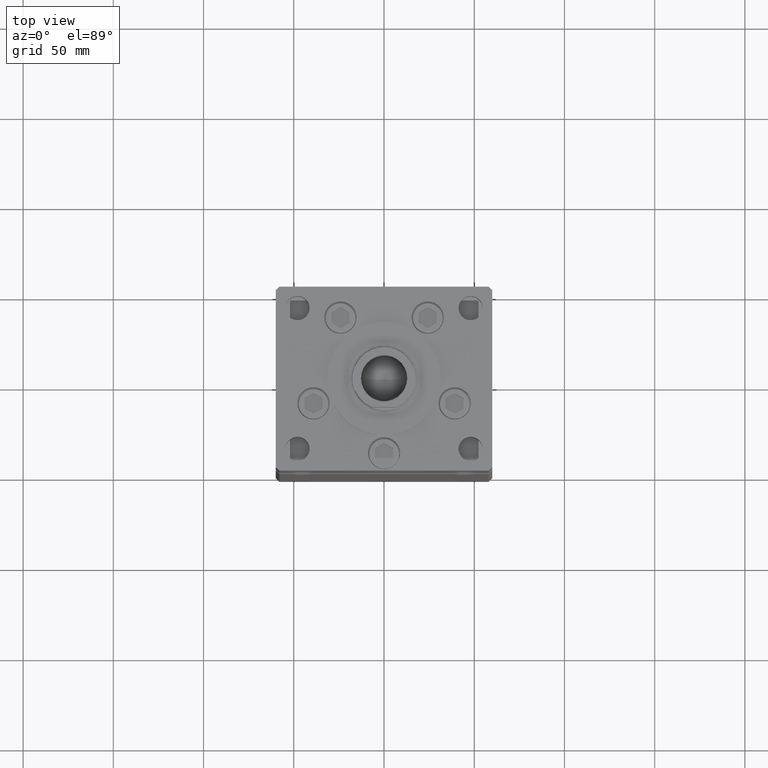
[diagram: clean part render]
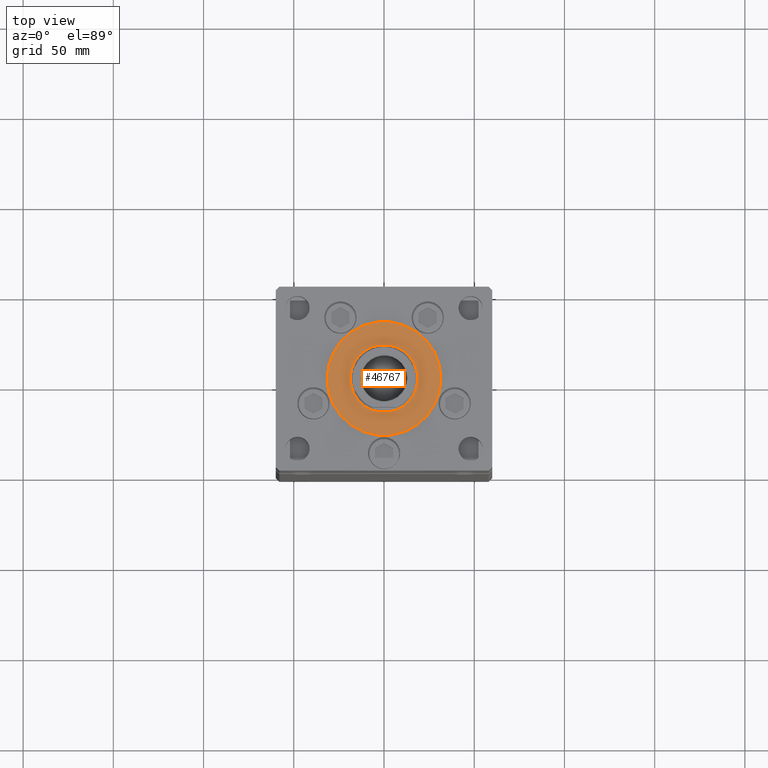
[diagram: same view with one face highlighted and labeled with its STEP entity id]
A machine part, top view. The second image highlights one B-rep face of the part: STEP entity #46767.
In plain terms, the highlighted planar face has unit normal (0, 0, 1).
Its self-contained STEP definition (entity closure, byte-faithful):
#173 = CARTESIAN_POINT ( 'NONE',  ( 0.000000000000000000, -6.938893903907228378E-15, 2.000000000000000000 ) ) ;
#968 = EDGE_CURVE ( 'NONE', #7262, #20343, #6055, .T. ) ;
#2905 = CARTESIAN_POINT ( 'NONE',  ( 0.000000000000000000, -6.938893903907228378E-15, 2.000000000000000000 ) ) ;
#3665 = DIRECTION ( 'NONE',  ( 0.000000000000000000, 0.000000000000000000, 1.000000000000000000 ) ) ;
#6055 = CIRCLE ( 'NONE', #41148, 18.75000000000000355 ) ;
#6567 = EDGE_CURVE ( 'NONE', #14253, #32097, #37861, .T. ) ;
#7262 = VERTEX_POINT ( 'NONE', #30052 ) ;
#8321 = ORIENTED_EDGE ( 'NONE', *, *, #968, .F. ) ;
#9760 = CIRCLE ( 'NONE', #40574, 31.50000000000000000 ) ;
#10675 = FACE_OUTER_BOUND ( 'NONE', #48638, .T. ) ;
#10773 = DIRECTION ( 'NONE',  ( 1.000000000000000000, 0.000000000000000000, 0.000000000000000000 ) ) ;
#10958 = DIRECTION ( 'NONE',  ( 0.000000000000000000, 0.000000000000000000, 1.000000000000000000 ) ) ;
#11455 = DIRECTION ( 'NONE',  ( 1.000000000000000000, 0.000000000000000000, -0.000000000000000000 ) ) ;
#12538 = ORIENTED_EDGE ( 'NONE', *, *, #14568, .T. ) ;
#12771 = DIRECTION ( 'NONE',  ( 1.000000000000000000, 0.000000000000000000, 0.000000000000000000 ) ) ;
#14253 = VERTEX_POINT ( 'NONE', #20914 ) ;
#14568 = EDGE_CURVE ( 'NONE', #32097, #14253, #9760, .T. ) ;
#14744 = AXIS2_PLACEMENT_3D ( 'NONE', #2905, #10958, #19287 ) ;
#14960 = FACE_BOUND ( 'NONE', #51100, .T. ) ;
#16553 = DIRECTION ( 'NONE',  ( 1.000000000000000000, 0.000000000000000000, 0.000000000000000000 ) ) ;
#19287 = DIRECTION ( 'NONE',  ( 1.000000000000000000, 0.000000000000000000, 0.000000000000000000 ) ) ;
#20343 = VERTEX_POINT ( 'NONE', #42557 ) ;
#20914 = CARTESIAN_POINT ( 'NONE',  ( 31.50000000000000000, -3.081256486593065689E-15, 2.000000000000000000 ) ) ;
#22085 = CARTESIAN_POINT ( 'NONE',  ( 0.000000000000000000, -6.938893903907228378E-15, 2.000000000000000000 ) ) ;
#22203 = ORIENTED_EDGE ( 'NONE', *, *, #31857, .F. ) ;
#29431 = DIRECTION ( 'NONE',  ( 0.000000000000000000, 0.000000000000000000, 1.000000000000000000 ) ) ;
#29723 = ORIENTED_EDGE ( 'NONE', *, *, #6567, .T. ) ;
#30052 = CARTESIAN_POINT ( 'NONE',  ( 18.75000000000000355, -6.938893903907228378E-15, 2.000000000000000000 ) ) ;
#30291 = AXIS2_PLACEMENT_3D ( 'NONE', #31856, #3665, #11455 ) ;
#31856 = CARTESIAN_POINT ( 'NONE',  ( 0.000000000000000000, -6.938893903907228378E-15, 2.000000000000000000 ) ) ;
#31857 = EDGE_CURVE ( 'NONE', #20343, #7262, #50467, .T. ) ;
#32097 = VERTEX_POINT ( 'NONE', #49234 ) ;
#32127 = PLANE ( 'NONE',  #30291 ) ;
#37207 = DIRECTION ( 'NONE',  ( 0.000000000000000000, 0.000000000000000000, 1.000000000000000000 ) ) ;
#37861 = CIRCLE ( 'NONE', #14744, 31.50000000000000000 ) ;
#38422 = DIRECTION ( 'NONE',  ( 0.000000000000000000, 0.000000000000000000, 1.000000000000000000 ) ) ;
#40574 = AXIS2_PLACEMENT_3D ( 'NONE', #173, #37207, #16553 ) ;
#41148 = AXIS2_PLACEMENT_3D ( 'NONE', #22085, #38422, #10773 ) ;
#42557 = CARTESIAN_POINT ( 'NONE',  ( -18.75000000000000355, -4.642681155505941194E-15, 2.000000000000000000 ) ) ;
#46213 = AXIS2_PLACEMENT_3D ( 'NONE', #46305, #29431, #12771 ) ;
#46305 = CARTESIAN_POINT ( 'NONE',  ( 0.000000000000000000, -6.938893903907228378E-15, 2.000000000000000000 ) ) ;
#46767 = ADVANCED_FACE ( 'NONE', ( #14960, #10675 ), #32127, .T. ) ;
#48638 = EDGE_LOOP ( 'NONE', ( #12538, #29723 ) ) ;
#49234 = CARTESIAN_POINT ( 'NONE',  ( -31.50000000000000000, -6.938893903907228378E-15, 2.000000000000000000 ) ) ;
#50467 = CIRCLE ( 'NONE', #46213, 18.75000000000000355 ) ;
#51100 = EDGE_LOOP ( 'NONE', ( #8321, #22203 ) ) ;